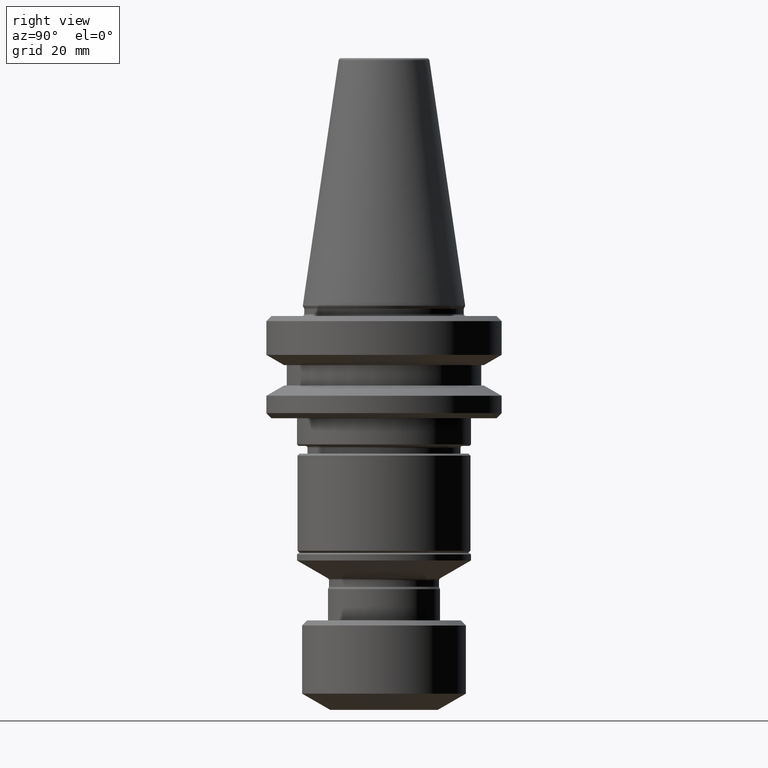
[diagram: clean part render]
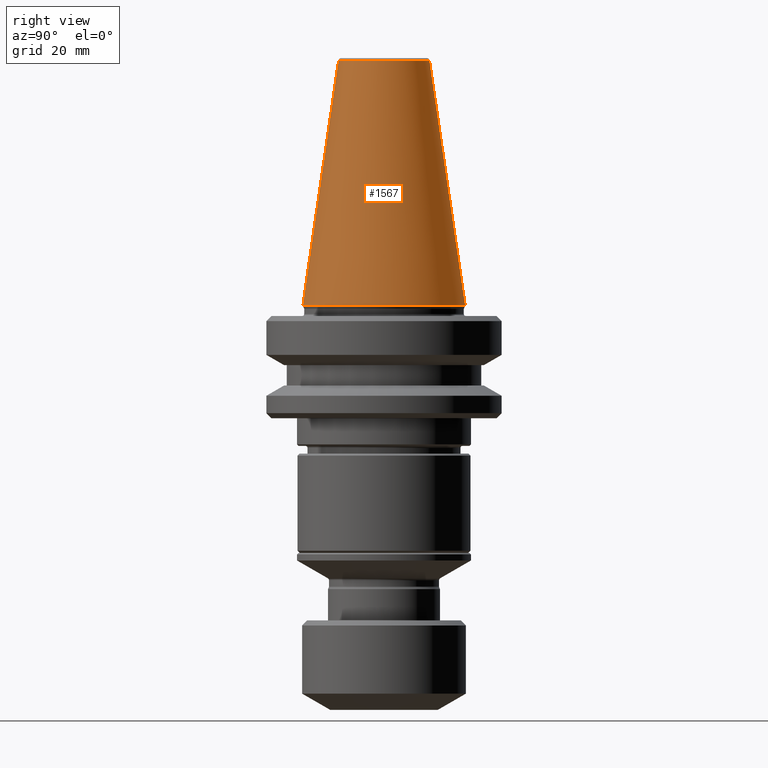
[diagram: same view with one face highlighted and labeled with its STEP entity id]
A machine part, right view. The second image highlights one B-rep face of the part: STEP entity #1567.
In plain terms, the highlighted conical surface has half-angle 8.297 deg.
Its self-contained STEP definition (entity closure, byte-faithful):
#5 = VECTOR ( 'NONE', #397, 1000.000000000000200 ) ;
#62 = DIRECTION ( 'NONE',  ( 0.0000000000000000000, -1.000000000000000000, 1.249865351798584400E-014 ) ) ;
#109 = VECTOR ( 'NONE', #998, 1000.000000000000000 ) ;
#240 = ORIENTED_EDGE ( 'NONE', *, *, #348, .F. ) ;
#274 = DIRECTION ( 'NONE',  ( 0.0000000000000000000, -1.249865351798584200E-014, -1.000000000000000000 ) ) ;
#309 = AXIS2_PLACEMENT_3D ( 'NONE', #487, #1402, #536 ) ;
#348 = EDGE_CURVE ( 'NONE', #1812, #1324, #1725, .T. ) ;
#376 = LINE ( 'NONE', #593, #5 ) ;
#397 = DIRECTION ( 'NONE',  ( 0.0000000000000000000, 0.1443082268835106700, -0.9895327865481452500 ) ) ;
#437 = ORIENTED_EDGE ( 'NONE', *, *, #1862, .T. ) ;
#485 = LINE ( 'NONE', #556, #109 ) ;
#487 = CARTESIAN_POINT ( 'NONE',  ( 0.0000000000000000000, -9.155476480990274000E-013, 47.97215411344091500 ) ) ;
#536 = DIRECTION ( 'NONE',  ( 0.0000000000000000000, -1.000000000000000000, 1.250392693158601300E-014 ) ) ;
#549 = EDGE_CURVE ( 'NONE', #1324, #1450, #376, .T. ) ;
#556 = CARTESIAN_POINT ( 'NONE',  ( 1.087363258667438400E-015, -8.878994820585129200, 47.97215411344102200 ) ) ;
#593 = CARTESIAN_POINT ( 'NONE',  ( 0.0000000000000000000, 8.878994820583297800, 47.97215411344080100 ) ) ;
#679 = VERTEX_POINT ( 'NONE', #1565 ) ;
#744 = AXIS2_PLACEMENT_3D ( 'NONE', #940, #274, #1724 ) ;
#766 = ORIENTED_EDGE ( 'NONE', *, *, #549, .F. ) ;
#871 = CARTESIAN_POINT ( 'NONE',  ( 1.515745026157008400E-015, -8.878994820585129200, 47.97215411344102200 ) ) ;
#874 = CARTESIAN_POINT ( 'NONE',  ( 1.944126793646578200E-015, 15.87499999999975100, -4.482163051387013500E-013 ) ) ;
#940 = CARTESIAN_POINT ( 'NONE',  ( 0.0000000000000000000, -9.155476480990274000E-013, 47.97215411344091500 ) ) ;
#997 = CONICAL_SURFACE ( 'NONE', #744, 8.878994820584212600, 0.1448138461595754300 ) ;
#998 = DIRECTION ( 'NONE',  ( 1.767266081435365200E-017, -0.1443082268835354200, -0.9895327865481417000 ) ) ;
#1030 = EDGE_CURVE ( 'NONE', #1812, #679, #485, .T. ) ;
#1042 = FACE_OUTER_BOUND ( 'NONE', #1745, .T. ) ;
#1102 = CARTESIAN_POINT ( 'NONE',  ( 0.0000000000000000000, 8.878994820583297800, 47.97215411344080100 ) ) ;
#1166 = AXIS2_PLACEMENT_3D ( 'NONE', #1599, #1550, #62 ) ;
#1213 = CIRCLE ( 'NONE', #1166, 15.87500000000126700 ) ;
#1324 = VERTEX_POINT ( 'NONE', #1102 ) ;
#1402 = DIRECTION ( 'NONE',  ( -0.0000000000000000000, 1.249865351798584200E-014, 1.000000000000000000 ) ) ;
#1450 = VERTEX_POINT ( 'NONE', #874 ) ;
#1550 = DIRECTION ( 'NONE',  ( -0.0000000000000000000, 1.249865351798584200E-014, 1.000000000000000000 ) ) ;
#1565 = CARTESIAN_POINT ( 'NONE',  ( 0.0000000000000000000, -15.87500000000278400, -5.138405594261913500E-014 ) ) ;
#1567 = ADVANCED_FACE ( 'NONE', ( #1042 ), #997, .T. ) ;
#1599 = CARTESIAN_POINT ( 'NONE',  ( 0.0000000000000000000, -1.515134980874347800E-012, -2.498001805406602200E-013 ) ) ;
#1620 = ORIENTED_EDGE ( 'NONE', *, *, #1030, .T. ) ;
#1724 = DIRECTION ( 'NONE',  ( 0.0000000000000000000, 1.000000000000000000, -1.250392693158601300E-014 ) ) ;
#1725 = CIRCLE ( 'NONE', #309, 8.878994820584212600 ) ;
#1745 = EDGE_LOOP ( 'NONE', ( #240, #1620, #437, #766 ) ) ;
#1812 = VERTEX_POINT ( 'NONE', #871 ) ;
#1862 = EDGE_CURVE ( 'NONE', #679, #1450, #1213, .T. ) ;